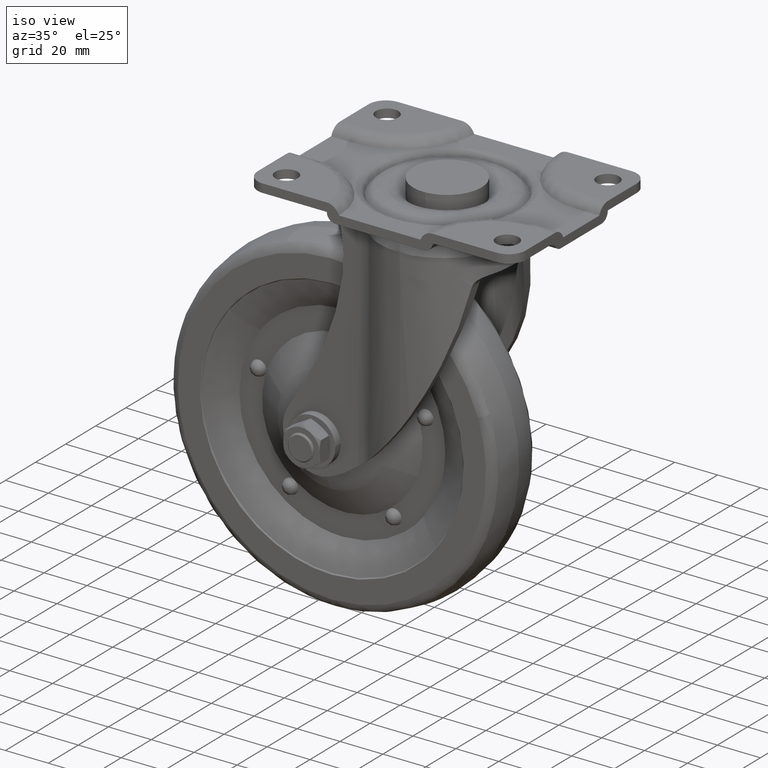
[diagram: clean part render]
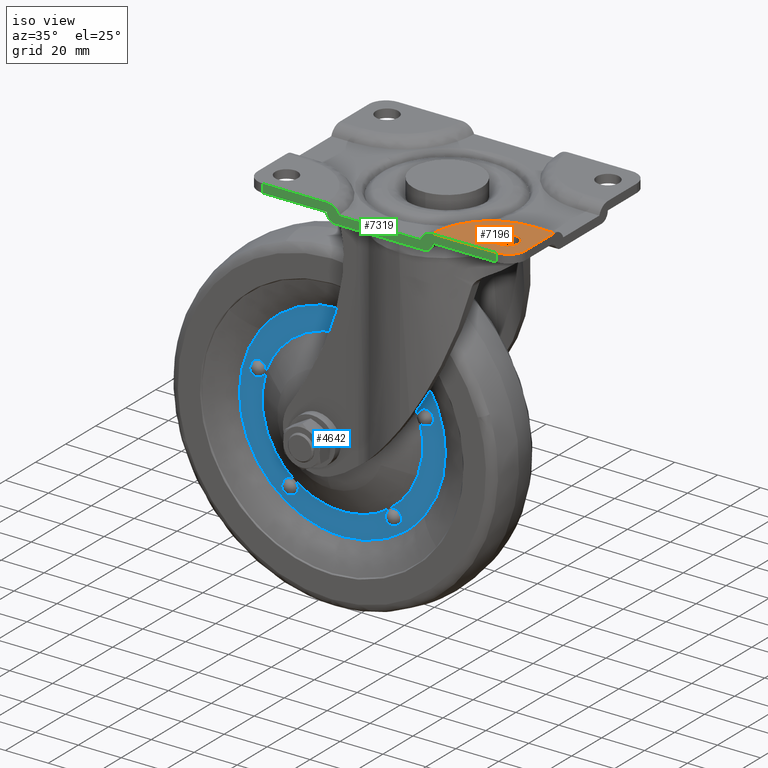
[diagram: same view with three faces highlighted in distinct colors, each labeled with its STEP entity id]
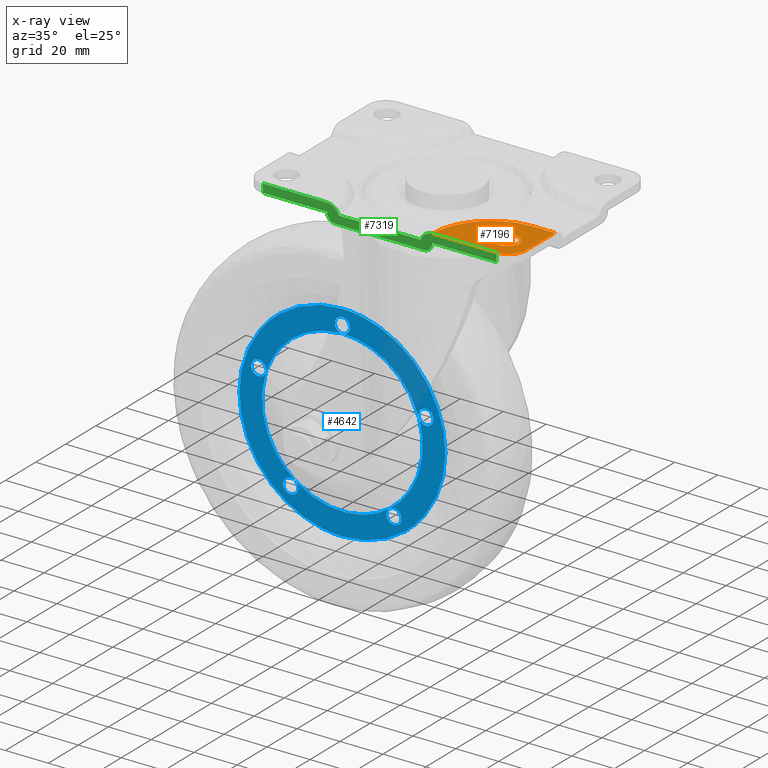
[diagram: x-ray of the same camera — body ghosted, the three highlighted faces saturated]
A machine part, iso view with three faces highlighted in distinct colors.
The next image is the same camera in x-ray (body ghosted, the three faces saturated) — at least one of them is partly hidden behind the body in this view.
Their STEP definitions:

[orange] entity #7196 — the highlighted face is a freeform B-spline surface patch.
#4845=CARTESIAN_POINT('',(51.179173166952843,-38.740207691684887,2.081668E-016));
#4846=VERTEX_POINT('',#4845);
#4847=CARTESIAN_POINT('',(56.749677999999903,-33.500000000000000,0.0));
#4848=VERTEX_POINT('',#4847);
#4849=CARTESIAN_POINT('',(51.179173166952843,-38.740207691684880,0.0));
#4850=CARTESIAN_POINT('',(51.339275992437088,-38.750000000000000,0.0));
#4851=CARTESIAN_POINT('',(51.499677999999903,-38.750000000000000,0.0));
#4852=CARTESIAN_POINT('',(56.749677999999896,-38.749999999999993,0.0));
#4853=CARTESIAN_POINT('',(56.749677999999903,-33.500000000000000,0.0));
#4861=(BOUNDED_CURVE()B_SPLINE_CURVE(2,(#4849,#4850,#4851,#4852,#4853),.UNSPECIFIED.,.F.,.U.)B_SPLINE_CURVE_WITH_KNOTS((3,2,3),(0.239332962225865,0.250000000000000,0.500000000000000),.UNSPECIFIED.)CURVE()GEOMETRIC_REPRESENTATION_ITEM()RATIONAL_B_SPLINE_CURVE((0.976072041638689,0.987502787884515,1.0,0.707106781186547,1.0))REPRESENTATION_ITEM(''));
#4862=EDGE_CURVE('',#4846,#4848,#4861,.T.);
#4864=CARTESIAN_POINT('',(51.820182833046957,-28.259792308315109,2.081668E-016));
#4865=VERTEX_POINT('',#4864);
#4866=CARTESIAN_POINT('',(56.749677999999903,-33.500000000000000,0.0));
#4867=CARTESIAN_POINT('',(56.749677999999911,-28.561293149206879,0.0));
#4868=CARTESIAN_POINT('',(51.820182833046957,-28.259792308315106,0.0));
#4876=(BOUNDED_CURVE()B_SPLINE_CURVE(2,(#4866,#4867,#4868),.UNSPECIFIED.,.F.,.U.)B_SPLINE_CURVE_WITH_KNOTS((3,3),(0.500000000000000,0.739332962225865),.UNSPECIFIED.)CURVE()GEOMETRIC_REPRESENTATION_ITEM()RATIONAL_B_SPLINE_CURVE((1.0,0.719603993302032,0.976072041638689))REPRESENTATION_ITEM(''));
#4877=EDGE_CURVE('',#4848,#4865,#4876,.T.);
#4944=CARTESIAN_POINT('',(46.249677999999903,-33.500000000000000,0.0));
#4945=VERTEX_POINT('',#4944);
#4946=CARTESIAN_POINT('',(46.249677999999903,-33.500000000000000,0.0));
#4947=CARTESIAN_POINT('',(46.249677999999903,-38.438706850793110,0.0));
#4948=CARTESIAN_POINT('',(51.179173166952836,-38.740207691684887,0.0));
#4956=(BOUNDED_CURVE()B_SPLINE_CURVE(2,(#4946,#4947,#4948),.UNSPECIFIED.,.F.,.U.)B_SPLINE_CURVE_WITH_KNOTS((3,3),(0.0,0.239332962225865),.UNSPECIFIED.)CURVE()GEOMETRIC_REPRESENTATION_ITEM()RATIONAL_B_SPLINE_CURVE((1.0,0.719603993302032,0.976072041638688))REPRESENTATION_ITEM(''));
#4957=EDGE_CURVE('',#4945,#4846,#4956,.T.);
#4991=CARTESIAN_POINT('',(51.820182833046964,-28.259792308315117,0.0));
#4992=CARTESIAN_POINT('',(51.660080007562712,-28.250000000000000,0.0));
#4993=CARTESIAN_POINT('',(51.499677999999903,-28.250000000000000,0.0));
#4994=CARTESIAN_POINT('',(46.249677999999896,-28.250000000000004,0.0));
#4995=CARTESIAN_POINT('',(46.249677999999903,-33.500000000000000,0.0));
#5003=(BOUNDED_CURVE()B_SPLINE_CURVE(2,(#4991,#4992,#4993,#4994,#4995),.UNSPECIFIED.,.F.,.U.)B_SPLINE_CURVE_WITH_KNOTS((3,2,3),(0.739332962225864,0.750000000000000,1.0),.UNSPECIFIED.)CURVE()GEOMETRIC_REPRESENTATION_ITEM()RATIONAL_B_SPLINE_CURVE((0.976072041638688,0.987502787884515,1.0,0.707106781186547,1.0))REPRESENTATION_ITEM(''));
#5004=EDGE_CURVE('',#4865,#4945,#5003,.T.);
#5777=CARTESIAN_POINT('',(62.499677999999903,-37.0,0.0));
#5778=VERTEX_POINT('',#5777);
#5784=CARTESIAN_POINT('',(54.499677999999903,-45.0,0.0));
#5785=VERTEX_POINT('',#5784);
#5786=CARTESIAN_POINT('',(54.499677999999903,-45.0,0.0));
#5787=CARTESIAN_POINT('',(62.499677999999882,-45.0,0.0));
#5788=CARTESIAN_POINT('',(62.499677999999903,-37.0,0.0));
#5796=(BOUNDED_CURVE()B_SPLINE_CURVE(2,(#5786,#5787,#5788),.UNSPECIFIED.,.F.,.U.)CURVE()GEOMETRIC_REPRESENTATION_ITEM()QUASI_UNIFORM_CURVE()RATIONAL_B_SPLINE_CURVE((1.0,0.707106781186548,1.0))REPRESENTATION_ITEM(''));
#5797=EDGE_CURVE('',#5785,#5778,#5796,.T.);
#6553=CARTESIAN_POINT('',(62.499677999999903,-17.656854249492351,0.0));
#6554=VERTEX_POINT('',#6553);
#6575=CARTESIAN_POINT('',(51.999677999999903,-17.656854249492401,0.0));
#6576=VERTEX_POINT('',#6575);
#6590=CARTESIAN_POINT('',(62.499677999999903,-17.656854249492351,0.0));
#6591=CARTESIAN_POINT('',(51.999677999999903,-17.656854249492401,0.0));
#6592=QUASI_UNIFORM_CURVE('',1,(#6590,#6591),.UNSPECIFIED.,.F.,.U.);
#6593=EDGE_CURVE('',#6554,#6576,#6592,.T.);
#6615=CARTESIAN_POINT('',(24.656532249492301,-45.0,0.0));
#6616=VERTEX_POINT('',#6615);
#6632=CARTESIAN_POINT('',(51.999677999999903,-17.656854249492390,0.0));
#6633=CARTESIAN_POINT('',(24.656532249492297,-17.656854249492397,0.0));
#6634=CARTESIAN_POINT('',(24.656532249492290,-45.0,0.0));
#6642=(BOUNDED_CURVE()B_SPLINE_CURVE(2,(#6632,#6633,#6634),.UNSPECIFIED.,.F.,.U.)CURVE()GEOMETRIC_REPRESENTATION_ITEM()QUASI_UNIFORM_CURVE()RATIONAL_B_SPLINE_CURVE((1.0,0.707106781186547,1.0))REPRESENTATION_ITEM(''));
#6643=EDGE_CURVE('',#6576,#6616,#6642,.T.);
#7170=CARTESIAN_POINT('',(22.766267192601809,-16.291064172250820,0.0));
#7171=CARTESIAN_POINT('',(64.389944071922656,-16.291064172250820,0.0));
#7172=CARTESIAN_POINT('',(22.766267192601809,-46.365790810641862,0.0));
#7173=CARTESIAN_POINT('',(64.389944071922656,-46.365790810641862,0.0));
#7174=B_SPLINE_SURFACE_WITH_KNOTS('',1,1,((#7170,#7172),(#7171,#7173)),.UNSPECIFIED.,.F.,.F.,.U.,(2,2),(2,2),(0.0,41.623676879320847),(0.0,30.074726638391031),.UNSPECIFIED.);
#7175=CARTESIAN_POINT('',(62.499677999999903,-37.0,0.0));
#7176=CARTESIAN_POINT('',(62.499677999999903,-17.656854249492351,0.0));
#7177=QUASI_UNIFORM_CURVE('',1,(#7175,#7176),.UNSPECIFIED.,.F.,.U.);
#7178=EDGE_CURVE('',#5778,#6554,#7177,.T.);
#7179=ORIENTED_EDGE('',*,*,#7178,.T.);
#7180=ORIENTED_EDGE('',*,*,#6593,.T.);
#7181=ORIENTED_EDGE('',*,*,#6643,.T.);
#7182=CARTESIAN_POINT('',(24.656532249492301,-45.0,0.0));
#7183=CARTESIAN_POINT('',(54.499677999999903,-45.0,0.0));
#7184=QUASI_UNIFORM_CURVE('',1,(#7182,#7183),.UNSPECIFIED.,.F.,.U.);
#7185=EDGE_CURVE('',#6616,#5785,#7184,.T.);
#7186=ORIENTED_EDGE('',*,*,#7185,.T.);
#7187=ORIENTED_EDGE('',*,*,#5797,.T.);
#7188=EDGE_LOOP('',(#7179,#7180,#7181,#7186,#7187));
#7189=FACE_OUTER_BOUND('',#7188,.T.);
#7190=ORIENTED_EDGE('',*,*,#4877,.F.);
#7191=ORIENTED_EDGE('',*,*,#4862,.F.);
#7192=ORIENTED_EDGE('',*,*,#4957,.F.);
#7193=ORIENTED_EDGE('',*,*,#5004,.F.);
#7194=EDGE_LOOP('',(#7190,#7191,#7192,#7193));
#7195=FACE_BOUND('',#7194,.T.);
#7196=ADVANCED_FACE('',(#7189,#7195),#7174,.F.);

[blue] entity #4642 — the highlighted face is a freeform B-spline surface patch.
#1807=CARTESIAN_POINT('',(-8.874792903171425,-6.999999999999702,-125.632776797194690));
#1808=VERTEX_POINT('',#1807);
#1814=CARTESIAN_POINT('',(-8.335380638931802,-7.0,-100.911862710939400));
#1815=VERTEX_POINT('',#1814);
#1816=CARTESIAN_POINT('',(-8.874792903171425,-6.999999999999702,-125.632776797194670));
#1817=CARTESIAN_POINT('',(-4.288621935363259,-6.999999999999999,-113.366505351832770));
#1818=CARTESIAN_POINT('',(-8.335380638931774,-7.0,-100.911862710939400));
#1826=(BOUNDED_CURVE()B_SPLINE_CURVE(2,(#1816,#1817,#1818),.UNSPECIFIED.,.F.,.U.)B_SPLINE_CURVE_WITH_KNOTS((3,3),(0.466422353161989,1.0),.UNSPECIFIED.)CURVE()GEOMETRIC_REPRESENTATION_ITEM()RATIONAL_B_SPLINE_CURVE((0.904939147962835,0.898095737272534,1.0))REPRESENTATION_ITEM(''));
#1827=EDGE_CURVE('',#1808,#1815,#1826,.T.);
#1829=CARTESIAN_POINT('',(-44.0,-7.0,-75.0));
#1830=VERTEX_POINT('',#1829);
#1831=CARTESIAN_POINT('',(-8.335380638931774,-7.0,-100.911862710939400));
#1832=CARTESIAN_POINT('',(-16.754655199799043,-7.000000000000001,-75.000000000000014));
#1833=CARTESIAN_POINT('',(-44.0,-7.0,-75.000000000000014));
#1841=(BOUNDED_CURVE()B_SPLINE_CURVE(2,(#1831,#1832,#1833),.UNSPECIFIED.,.F.,.U.)CURVE()GEOMETRIC_REPRESENTATION_ITEM()QUASI_UNIFORM_CURVE()RATIONAL_B_SPLINE_CURVE((1.0,0.809016994374948,1.0))REPRESENTATION_ITEM(''));
#1842=EDGE_CURVE('',#1815,#1830,#1841,.T.);
#1844=CARTESIAN_POINT('',(-79.125207096807543,-6.999999999997442,-99.367223202738558));
#1845=VERTEX_POINT('',#1844);
#1846=CARTESIAN_POINT('',(-44.0,-7.0,-75.0));
#1847=CARTESIAN_POINT('',(-70.014675659690766,-6.999999999998721,-74.999999999999289));
#1848=CARTESIAN_POINT('',(-79.125207096807543,-6.999999999997443,-99.367223202738558));
#1856=(BOUNDED_CURVE()B_SPLINE_CURVE(2,(#1846,#1847,#1848),.UNSPECIFIED.,.F.,.U.)B_SPLINE_CURVE_WITH_KNOTS((3,3),(0.0,0.963138804174748),.UNSPECIFIED.)CURVE()GEOMETRIC_REPRESENTATION_ITEM()RATIONAL_B_SPLINE_CURVE((1.0,0.816056856344587,0.986439271522011))REPRESENTATION_ITEM(''));
#1857=EDGE_CURVE('',#1830,#1845,#1856,.T.);
#1887=CARTESIAN_POINT('',(-79.664619361068304,-7.0,-100.911862710939600));
#1888=VERTEX_POINT('',#1887);
#1889=CARTESIAN_POINT('',(-79.125207096807543,-6.999999999997442,-99.367223202738558));
#1890=CARTESIAN_POINT('',(-79.411765305921847,-6.999999999998723,-100.133657948100660));
#1891=CARTESIAN_POINT('',(-79.664619361068304,-7.0,-100.911862710939600));
#1899=(BOUNDED_CURVE()B_SPLINE_CURVE(2,(#1889,#1890,#1891),.UNSPECIFIED.,.F.,.U.)B_SPLINE_CURVE_WITH_KNOTS((3,3),(0.963138804174747,1.0),.UNSPECIFIED.)CURVE()GEOMETRIC_REPRESENTATION_ITEM()RATIONAL_B_SPLINE_CURVE((0.986439271522011,0.992960138030360,1.0))REPRESENTATION_ITEM(''));
#1900=EDGE_CURVE('',#1845,#1888,#1899,.T.);
#1902=CARTESIAN_POINT('',(-66.041946960967806,-7.0,-142.838137289060400));
#1903=VERTEX_POINT('',#1902);
#1904=CARTESIAN_POINT('',(-79.664619361068304,-7.0,-100.911862710939600));
#1905=CARTESIAN_POINT('',(-88.083893921935385,-7.000000000000002,-126.823725421878860));
#1906=CARTESIAN_POINT('',(-66.041946960967849,-7.0,-142.838137289060510));
#1914=(BOUNDED_CURVE()B_SPLINE_CURVE(2,(#1904,#1905,#1906),.UNSPECIFIED.,.F.,.U.)CURVE()GEOMETRIC_REPRESENTATION_ITEM()QUASI_UNIFORM_CURVE()RATIONAL_B_SPLINE_CURVE((1.0,0.809016994374949,1.0))REPRESENTATION_ITEM(''));
#1915=EDGE_CURVE('',#1888,#1903,#1914,.T.);
#1917=CARTESIAN_POINT('',(-21.958053039032301,-7.0,-142.838137289060400));
#1918=VERTEX_POINT('',#1917);
#1919=CARTESIAN_POINT('',(-66.041946960967849,-7.0,-142.838137289060510));
#1920=CARTESIAN_POINT('',(-44.000000000000057,-7.000000000000002,-158.852549156242190));
#1921=CARTESIAN_POINT('',(-21.958053039032212,-7.0,-142.838137289060510));
#1929=(BOUNDED_CURVE()B_SPLINE_CURVE(2,(#1919,#1920,#1921),.UNSPECIFIED.,.F.,.U.)CURVE()GEOMETRIC_REPRESENTATION_ITEM()QUASI_UNIFORM_CURVE()RATIONAL_B_SPLINE_CURVE((1.0,0.809016994374946,1.0))REPRESENTATION_ITEM(''));
#1930=EDGE_CURVE('',#1903,#1918,#1929,.T.);
#1932=CARTESIAN_POINT('',(-21.958053039032219,-7.0,-142.838137289060510));
#1933=CARTESIAN_POINT('',(-12.827310092089510,-7.0,-136.204264225821590));
#1934=CARTESIAN_POINT('',(-8.874792903171802,-7.0,-125.632776797194550));
#1942=(BOUNDED_CURVE()B_SPLINE_CURVE(2,(#1932,#1933,#1934),.UNSPECIFIED.,.F.,.U.)B_SPLINE_CURVE_WITH_KNOTS((3,3),(0.0,0.466422353161989),.UNSPECIFIED.)CURVE()GEOMETRIC_REPRESENTATION_ITEM()RATIONAL_B_SPLINE_CURVE((1.0,0.910921257102413,0.904939147962835))REPRESENTATION_ITEM(''));
#1943=EDGE_CURVE('',#1918,#1808,#1942,.T.);
#4071=CARTESIAN_POINT('',(-82.111539135154743,-7.000000000074957,-83.319345710595996));
#4072=VERTEX_POINT('',#4071);
#4086=CARTESIAN_POINT('',(-44.0,-7.0,-64.500000000000000));
#4087=VERTEX_POINT('',#4086);
#4088=CARTESIAN_POINT('',(-44.0,-7.0,-64.500000000000000));
#4089=CARTESIAN_POINT('',(-67.702233355375498,-7.000000000037479,-64.499999999974207));
#4090=CARTESIAN_POINT('',(-82.111539135154743,-7.000000000074957,-83.319345710595996));
#4098=(BOUNDED_CURVE()B_SPLINE_CURVE(2,(#4088,#4089,#4090),.UNSPECIFIED.,.F.,.U.)B_SPLINE_CURVE_WITH_KNOTS((3,3),(0.500000000000000,0.644938183777398),.UNSPECIFIED.)CURVE()GEOMETRIC_REPRESENTATION_ITEM()RATIONAL_B_SPLINE_CURVE((1.0,0.830194355297849,0.857279284501937))REPRESENTATION_ITEM(''));
#4099=EDGE_CURVE('',#4087,#4072,#4098,.T.);
#4101=CARTESIAN_POINT('',(-5.888460864845264,-7.000000000074959,-141.680654289404000));
#4102=VERTEX_POINT('',#4101);
#4103=CARTESIAN_POINT('',(-5.888460864845264,-7.000000000074959,-141.680654289404060));
#4104=CARTESIAN_POINT('',(4.000000000061712,-7.000000000068688,-128.765780637083790));
#4105=CARTESIAN_POINT('',(4.000000000050292,-7.000000000055986,-112.500000000038500));
#4106=CARTESIAN_POINT('',(4.000000000016634,-7.000000000018506,-64.500000000012719));
#4107=CARTESIAN_POINT('',(-44.0,-7.0,-64.500000000000000));
#4115=(BOUNDED_CURVE()B_SPLINE_CURVE(2,(#4103,#4104,#4105,#4106,#4107),.UNSPECIFIED.,.F.,.U.)B_SPLINE_CURVE_WITH_KNOTS((3,2,3),(0.144938183777398,0.250000000000000,0.500000000000000),.UNSPECIFIED.)CURVE()GEOMETRIC_REPRESENTATION_ITEM()RATIONAL_B_SPLINE_CURVE((0.857279284501937,0.876912425888699,1.0,0.707106781186548,1.0))REPRESENTATION_ITEM(''));
#4116=EDGE_CURVE('',#4102,#4087,#4115,.T.);
#4159=CARTESIAN_POINT('',(-44.0,-6.999999999999996,-160.500000000000000));
#4160=VERTEX_POINT('',#4159);
#4161=CARTESIAN_POINT('',(-44.0,-6.999999999999996,-160.500000000000000));
#4162=CARTESIAN_POINT('',(-20.297766644624510,-7.000000000037477,-160.500000000025780));
#4163=CARTESIAN_POINT('',(-5.888460864845264,-7.000000000074959,-141.680654289404060));
#4171=(BOUNDED_CURVE()B_SPLINE_CURVE(2,(#4161,#4162,#4163),.UNSPECIFIED.,.F.,.U.)B_SPLINE_CURVE_WITH_KNOTS((3,3),(0.0,0.144938183777398),.UNSPECIFIED.)CURVE()GEOMETRIC_REPRESENTATION_ITEM()RATIONAL_B_SPLINE_CURVE((1.0,0.830194355297849,0.857279284501937))REPRESENTATION_ITEM(''));
#4172=EDGE_CURVE('',#4160,#4102,#4171,.T.);
#4174=CARTESIAN_POINT('',(-82.111539135154743,-7.000000000074957,-83.319345710595996));
#4175=CARTESIAN_POINT('',(-92.000000000061718,-7.000000000068686,-96.234219362916221));
#4176=CARTESIAN_POINT('',(-92.000000000050306,-7.000000000055984,-112.499999999961500));
#4177=CARTESIAN_POINT('',(-92.000000000016627,-7.000000000018503,-160.499999999987300));
#4178=CARTESIAN_POINT('',(-44.0,-6.999999999999996,-160.500000000000000));
#4186=(BOUNDED_CURVE()B_SPLINE_CURVE(2,(#4174,#4175,#4176,#4177,#4178),.UNSPECIFIED.,.F.,.U.)B_SPLINE_CURVE_WITH_KNOTS((3,2,3),(0.644938183777398,0.750000000000000,1.0),.UNSPECIFIED.)CURVE()GEOMETRIC_REPRESENTATION_ITEM()RATIONAL_B_SPLINE_CURVE((0.857279284501937,0.876912425888699,1.0,0.707106781186548,1.0))REPRESENTATION_ITEM(''));
#4187=EDGE_CURVE('',#4072,#4160,#4186,.T.);
#4239=CARTESIAN_POINT('',(-86.322014975134437,-6.999999999999920,-98.748743750314617));
#4240=VERTEX_POINT('',#4239);
#4241=CARTESIAN_POINT('',(-79.664619361068304,-7.0,-100.911862710939600));
#4242=CARTESIAN_POINT('',(-79.531579375136204,-6.999999999999869,-100.503440611304500));
#4243=CARTESIAN_POINT('',(-79.418694091694704,-6.999999999999950,-99.637097213659004));
#4244=CARTESIAN_POINT('',(-79.700128191664646,-6.999999999999933,-98.476727074172913));
#4245=CARTESIAN_POINT('',(-80.204742241991596,-6.999999999999913,-97.667506687838440));
#4246=CARTESIAN_POINT('',(-80.769597966874159,-6.999999999999941,-97.094304379606385));
#4247=CARTESIAN_POINT('',(-81.515538380837469,-6.999999999999923,-96.600828822944720));
#4248=CARTESIAN_POINT('',(-82.490215272451280,-6.999999999999884,-96.310419058195336));
#4249=CARTESIAN_POINT('',(-83.472529999793295,-6.999999999999970,-96.327526774450732));
#4250=CARTESIAN_POINT('',(-84.390743729066429,-6.999999999999893,-96.574221461918000));
#4251=CARTESIAN_POINT('',(-85.165184003868717,-6.999999999999887,-97.030709194240231));
#4252=CARTESIAN_POINT('',(-85.885825025428275,-7.000000000000012,-97.776680927458642));
#4253=CARTESIAN_POINT('',(-86.198397927501617,-6.999999999999806,-98.367368001892956));
#4254=CARTESIAN_POINT('',(-86.322014975134437,-6.999999999999920,-98.748743750314617));
#4255=B_SPLINE_CURVE_WITH_KNOTS('',3,(#4241,#4242,#4243,#4244,#4245,#4246,#4247,#4248,#4249,#4250,#4251,#4252,#4253,#4254),.UNSPECIFIED.,.F.,.U.,(4,1,1,1,1,1,1,1,1,1,1,4),(0.000000716948088,1.288553481662710,2.577148631617620,3.522158739251202,4.123471527610780,4.982608421297837,6.185144539164943,7.130093131137930,7.903258906376352,9.020043230724795,9.793215092397322,10.995850211742709),.UNSPECIFIED.);
#4256=EDGE_CURVE('',#1888,#4240,#4255,.T.);
#4258=CARTESIAN_POINT('',(-86.322014975134437,-6.999999999999920,-98.748743750314617));
#4259=CARTESIAN_POINT('',(-86.428287148631057,-6.999999999999917,-99.075469955161935));
#4260=CARTESIAN_POINT('',(-86.553324199334469,-6.999999999999932,-99.817645828407365));
#4261=CARTESIAN_POINT('',(-86.381593256652707,-6.999999999999913,-100.937861917503400));
#4262=CARTESIAN_POINT('',(-85.828801854770774,-6.999999999999932,-101.990731949363710));
#4263=CARTESIAN_POINT('',(-85.067523749820907,-6.999999999999914,-102.708276132834600));
#4264=CARTESIAN_POINT('',(-84.221373476459178,-6.999999999999929,-103.141800184209000));
#4265=CARTESIAN_POINT('',(-83.520930097261044,-6.999999999999916,-103.313600773714800));
#4266=CARTESIAN_POINT('',(-82.803844500651024,-6.999999999999925,-103.345274586219400));
#4267=CARTESIAN_POINT('',(-82.090650567349542,-6.999999999999913,-103.244887327965500));
#4268=CARTESIAN_POINT('',(-81.203880570498455,-6.999999999999949,-102.898056965635600));
#4269=CARTESIAN_POINT('',(-80.268250662043869,-6.999999999999858,-102.160511379719590));
#4270=CARTESIAN_POINT('',(-79.814482380321664,-6.999999999999943,-101.375050871001210));
#4271=CARTESIAN_POINT('',(-79.664619361068304,-7.0,-100.911862710939600));
#4272=B_SPLINE_CURVE_WITH_KNOTS('',3,(#4258,#4259,#4260,#4261,#4262,#4263,#4264,#4265,#4266,#4267,#4268,#4269,#4270,#4271),.UNSPECIFIED.,.F.,.U.,(4,1,1,1,1,1,1,1,1,1,1,4),(0.000000716924022,1.030759653957421,2.233504515306608,3.350329781584115,4.553048990798414,5.326182265275469,6.185144539159365,6.700560554787295,7.473732416585773,8.332796197841136,9.535533695490347,10.995850211742770),.UNSPECIFIED.);
#4273=EDGE_CURVE('',#4240,#1888,#4272,.T.);
#4322=CARTESIAN_POINT('',(-70.156443727015002,-6.999999999999920,-148.501256249685500));
#4323=VERTEX_POINT('',#4322);
#4324=CARTESIAN_POINT('',(-66.041946960967806,-7.0,-142.838137289060400));
#4325=CARTESIAN_POINT('',(-66.389263053458251,-6.999999999999872,-142.585351083332600));
#4326=CARTESIAN_POINT('',(-66.994219461375025,-6.999999999999943,-142.298101865078590));
#4327=CARTESIAN_POINT('',(-68.073339904556619,-6.999999999999911,-142.121548612547090));
#4328=CARTESIAN_POINT('',(-69.114177472052162,-6.999999999999925,-142.247237496119310));
#4329=CARTESIAN_POINT('',(-70.073737511558136,-6.999999999999920,-142.727642114159410));
#4330=CARTESIAN_POINT('',(-70.843939307890196,-6.999999999999922,-143.422281255927490));
#4331=CARTESIAN_POINT('',(-71.425731866807425,-6.999999999999900,-144.360694694985110));
#4332=CARTESIAN_POINT('',(-71.673096609272037,-7.000000000000022,-145.588456816079710));
#4333=CARTESIAN_POINT('',(-71.504647056957523,-6.999999999999825,-146.650356600631910));
#4334=CARTESIAN_POINT('',(-71.039686580614287,-6.999999999999982,-147.671809876568490));
#4335=CARTESIAN_POINT('',(-70.550731443793268,-6.999999999999877,-148.215564093134990));
#4336=CARTESIAN_POINT('',(-70.156443727015002,-6.999999999999920,-148.501256249685500));
#4337=B_SPLINE_CURVE_WITH_KNOTS('',3,(#4324,#4325,#4326,#4327,#4328,#4329,#4330,#4331,#4332,#4333,#4334,#4335,#4336),.UNSPECIFIED.,.F.,.U.,(4,1,1,1,1,1,1,1,1,1,4),(0.000000716969868,1.288553481683866,1.975791420165969,3.264403479394179,4.381253071873418,5.154415332139138,6.356872910240456,7.645513248159203,8.848262399129100,9.535533695498179,10.995850211742260),.UNSPECIFIED.);
#4338=EDGE_CURVE('',#1903,#4323,#4337,.T.);
#4340=CARTESIAN_POINT('',(-70.156443727015002,-6.999999999999920,-148.501256249685500));
#4341=CARTESIAN_POINT('',(-69.832276266427726,-6.999999999999949,-148.737154427692190));
#4342=CARTESIAN_POINT('',(-69.284386539579799,-6.999999999999872,-149.005677042529100));
#4343=CARTESIAN_POINT('',(-68.439148062523870,-6.999999999999952,-149.175883008743200));
#4344=CARTESIAN_POINT('',(-67.574781939577491,-6.999999999999919,-149.178341688231910));
#4345=CARTESIAN_POINT('',(-66.597253047417041,-6.999999999999891,-148.897416514700690));
#4346=CARTESIAN_POINT('',(-65.784432230616218,-6.999999999999927,-148.342483069397590));
#4347=CARTESIAN_POINT('',(-65.249383908572554,-6.999999999999917,-147.740178156529110));
#4348=CARTESIAN_POINT('',(-64.900279767581367,-6.999999999999925,-147.144484042019400));
#4349=CARTESIAN_POINT('',(-64.607619133907150,-6.999999999999918,-146.301790432568990));
#4350=CARTESIAN_POINT('',(-64.558195824942743,-6.999999999999923,-145.342134498013110));
#4351=CARTESIAN_POINT('',(-64.806185750597479,-6.999999999999914,-144.392941166586890));
#4352=CARTESIAN_POINT('',(-65.252222464895226,-6.999999999999966,-143.553339331277810));
#4353=CARTESIAN_POINT('',(-65.717459987459478,-6.999999999999829,-143.073579905576590));
#4354=CARTESIAN_POINT('',(-66.041946960967806,-7.0,-142.838137289060400));
#4355=B_SPLINE_CURVE_WITH_KNOTS('',3,(#4340,#4341,#4342,#4343,#4344,#4345,#4346,#4347,#4348,#4349,#4350,#4351,#4352,#4353,#4354),.UNSPECIFIED.,.F.,.U.,(4,1,1,1,1,1,1,1,1,1,1,1,4),(0.000000716854757,1.202626324375824,1.803955654466190,2.577148631550898,3.779868743738313,4.810749963047117,5.497925435644093,6.185144539129775,6.872320823149190,8.160979449408506,9.020043230711515,9.793215092390277,10.995850211743210),.UNSPECIFIED.);
#4356=EDGE_CURVE('',#4323,#1903,#4355,.T.);
#4405=CARTESIAN_POINT('',(-17.843556272984941,-6.999999999999920,-148.501256249685410));
#4406=VERTEX_POINT('',#4405);
#4407=CARTESIAN_POINT('',(-21.958053039032301,-7.0,-142.838137289060400));
#4408=CARTESIAN_POINT('',(-22.236123051671790,-6.999999999999883,-143.039969165347910));
#4409=CARTESIAN_POINT('',(-22.669914139474059,-6.999999999999939,-143.465722502156410));
#4410=CARTESIAN_POINT('',(-23.171600312152979,-6.999999999999935,-144.307068375687090));
#4411=CARTESIAN_POINT('',(-23.416947986669939,-6.999999999999876,-145.202073530257790));
#4412=CARTESIAN_POINT('',(-23.402319046397938,-6.999999999999999,-146.182936394897010));
#4413=CARTESIAN_POINT('',(-23.122744767045749,-6.999999999999878,-147.184962546522910));
#4414=CARTESIAN_POINT('',(-22.489446539572558,-6.999999999999936,-148.127738308130290));
#4415=CARTESIAN_POINT('',(-21.625899548131098,-6.999999999999914,-148.764687742412210));
#4416=CARTESIAN_POINT('',(-20.818635619884329,-7.000000000000117,-149.073608422924710));
#4417=CARTESIAN_POINT('',(-20.022904787280989,-6.999999999999836,-149.199708322949900));
#4418=CARTESIAN_POINT('',(-18.985618612357911,-6.999999999999955,-149.120757695279790));
#4419=CARTESIAN_POINT('',(-18.237061163595271,-6.999999999999930,-148.787965184644610));
#4420=CARTESIAN_POINT('',(-17.843556272984941,-6.999999999999920,-148.501256249685410));
#4421=B_SPLINE_CURVE_WITH_KNOTS('',3,(#4407,#4408,#4409,#4410,#4411,#4412,#4413,#4414,#4415,#4416,#4417,#4418,#4419,#4420),.UNSPECIFIED.,.F.,.U.,(4,1,1,1,1,1,1,1,1,1,1,4),(0.000000716994800,1.030759654017711,1.803955654578795,2.920785672740805,3.779868743824725,4.724799527148357,6.013260988207547,7.130093131154860,7.903258906390217,8.590516740883519,9.535533695497962,10.995850211742219),.UNSPECIFIED.);
#4422=EDGE_CURVE('',#1918,#4406,#4421,.T.);
#4424=CARTESIAN_POINT('',(-17.843556272984941,-6.999999999999920,-148.501256249685410));
#4425=CARTESIAN_POINT('',(-17.519082474659509,-6.999999999999912,-148.265809848510910));
#4426=CARTESIAN_POINT('',(-17.053806064783839,-6.999999999999935,-147.786075781765500));
#4427=CARTESIAN_POINT('',(-16.648387720187522,-6.999999999999906,-147.022761115384700));
#4428=CARTESIAN_POINT('',(-16.408216048380240,-6.999999999999953,-146.224609734983890));
#4429=CARTESIAN_POINT('',(-16.364880074874751,-6.999999999999872,-145.297589151281610));
#4430=CARTESIAN_POINT('',(-16.618241395869319,-6.999999999999984,-144.346600840900490));
#4431=CARTESIAN_POINT('',(-17.117278232531600,-6.999999999999873,-143.470313500601690));
#4432=CARTESIAN_POINT('',(-17.784379289388681,-6.999999999999931,-142.822691482174800));
#4433=CARTESIAN_POINT('',(-18.700345104419910,-6.999999999999936,-142.335968992484110));
#4434=CARTESIAN_POINT('',(-19.662942131713422,-6.999999999999906,-142.122254080495310));
#4435=CARTESIAN_POINT('',(-20.845130326562529,-6.999999999999945,-142.227035471158900));
#4436=CARTESIAN_POINT('',(-21.587659004299908,-6.999999999999882,-142.568426809688190));
#4437=CARTESIAN_POINT('',(-21.958053039032301,-7.0,-142.838137289060400));
#4438=B_SPLINE_CURVE_WITH_KNOTS('',3,(#4424,#4425,#4426,#4427,#4428,#4429,#4430,#4431,#4432,#4433,#4434,#4435,#4436,#4437),.UNSPECIFIED.,.F.,.U.,(4,1,1,1,1,1,1,1,1,1,1,4),(0.000000716987428,1.202626324491737,1.975791420177837,2.577148631648971,3.693928735907609,4.724799527146519,5.497925435708588,6.700560554810645,7.473732416604831,8.590516740883793,9.621454824094917,10.995850211742271),.UNSPECIFIED.);
#4439=EDGE_CURVE('',#4406,#1918,#4438,.T.);
#4488=CARTESIAN_POINT('',(-1.677985024865485,-6.999999999999920,-98.748743750314830));
#4489=VERTEX_POINT('',#4488);
#4490=CARTESIAN_POINT('',(-8.335380638931802,-7.0,-100.911862710939400));
#4491=CARTESIAN_POINT('',(-8.185425741121755,-6.999999999999892,-101.375046789364400));
#4492=CARTESIAN_POINT('',(-7.804971280262095,-6.999999999999920,-102.033703916180000));
#4493=CARTESIAN_POINT('',(-7.074058802887279,-6.999999999999930,-102.685954804657800));
#4494=CARTESIAN_POINT('',(-6.350127732147783,-6.999999999999910,-103.100943749332400));
#4495=CARTESIAN_POINT('',(-5.458592106386966,-6.999999999999923,-103.352434281343410));
#4496=CARTESIAN_POINT('',(-4.358811396206839,-6.999999999999943,-103.330894040818810));
#4497=CARTESIAN_POINT('',(-3.427009003677902,-6.999999999999858,-103.002676485449700));
#4498=CARTESIAN_POINT('',(-2.742620814111142,-7.000000000000025,-102.525308486764900));
#4499=CARTESIAN_POINT('',(-2.238295189047250,-6.999999999999741,-102.013573147095300));
#4500=CARTESIAN_POINT('',(-1.755796637371176,-7.000000000000017,-101.260382647682210));
#4501=CARTESIAN_POINT('',(-1.432408940052959,-6.999999999999835,-100.113714399268600));
#4502=CARTESIAN_POINT('',(-1.526967608504208,-6.999999999999969,-99.211562482849629));
#4503=CARTESIAN_POINT('',(-1.677985024865485,-6.999999999999920,-98.748743750314830));
#4504=B_SPLINE_CURVE_WITH_KNOTS('',3,(#4490,#4491,#4492,#4493,#4494,#4495,#4496,#4497,#4498,#4499,#4500,#4501,#4502,#4503),.UNSPECIFIED.,.F.,.U.,(4,1,1,1,1,1,1,1,1,1,1,4),(0.000000716937025,1.460311387911752,2.233504515314108,2.920785672699640,3.951708358559495,4.982608421293711,6.185144539162562,6.872320823177212,7.473732416588321,8.332796197843496,9.535533695491957,10.995850211742720),.UNSPECIFIED.);
#4505=EDGE_CURVE('',#1815,#4489,#4504,.T.);
#4507=CARTESIAN_POINT('',(-1.677985024865485,-6.999999999999920,-98.748743750314830));
#4508=CARTESIAN_POINT('',(-1.801624124841823,-6.999999999999923,-98.367382208500956));
#4509=CARTESIAN_POINT('',(-2.114145832484233,-6.999999999999923,-97.776676439411688));
#4510=CARTESIAN_POINT('',(-2.834831914004568,-6.999999999999926,-97.030756343779316));
#4511=CARTESIAN_POINT('',(-3.759119927243752,-6.999999999999918,-96.485600909770568));
#4512=CARTESIAN_POINT('',(-4.817522664831550,-6.999999999999913,-96.283233325815800));
#4513=CARTESIAN_POINT('',(-5.734267825142609,-6.999999999999927,-96.380738374991324));
#4514=CARTESIAN_POINT('',(-6.473068601301165,-6.999999999999907,-96.620732426702318));
#4515=CARTESIAN_POINT('',(-7.143142724309435,-6.999999999999931,-97.017850063226106));
#4516=CARTESIAN_POINT('',(-7.806278933110633,-6.999999999999915,-97.658432204218016));
#4517=CARTESIAN_POINT('',(-8.262776146558494,-6.999999999999923,-98.432876978430031));
#4518=CARTESIAN_POINT('',(-8.494500306996635,-6.999999999999937,-99.295479517504347));
#4519=CARTESIAN_POINT('',(-8.528103443823085,-6.999999999999862,-100.101436943830610));
#4520=CARTESIAN_POINT('',(-8.423931599220204,-7.000000000000020,-100.639583374813800));
#4521=CARTESIAN_POINT('',(-8.335380638931802,-7.0,-100.911862710939400));
#4522=B_SPLINE_CURVE_WITH_KNOTS('',3,(#4507,#4508,#4509,#4510,#4511,#4512,#4513,#4514,#4515,#4516,#4517,#4518,#4519,#4520,#4521),.UNSPECIFIED.,.F.,.U.,(4,1,1,1,1,1,1,1,1,1,1,1,4),(0.000000716954105,1.202626324461912,1.975791420149536,3.092609755543903,4.381253071855712,5.154415332121343,5.841419408216808,6.700560554793428,7.473732416589993,8.590516740872946,9.363682516072833,10.136902737018850,10.995850211742759),.UNSPECIFIED.);
#4523=EDGE_CURVE('',#4489,#1815,#4522,.T.);
#4572=CARTESIAN_POINT('',(-44.0,-6.999999999999920,-67.999999999999929));
#4573=VERTEX_POINT('',#4572);
#4574=CARTESIAN_POINT('',(-44.0,-7.0,-75.0));
#4575=CARTESIAN_POINT('',(-43.513122692394496,-6.999999999999854,-75.000578927893883));
#4576=CARTESIAN_POINT('',(-42.826417468174498,-6.999999999999944,-74.854339967198968));
#4577=CARTESIAN_POINT('',(-41.995567687918452,-6.999999999999928,-74.396771473515074));
#4578=CARTESIAN_POINT('',(-41.510572526316658,-6.999999999999891,-73.988732997075132));
#4579=CARTESIAN_POINT('',(-41.073466520740922,-6.999999999999941,-73.456018948123315));
#4580=CARTESIAN_POINT('',(-40.670280293663232,-6.999999999999901,-72.724174082963160));
#4581=CARTESIAN_POINT('',(-40.434687772806953,-6.999999999999910,-71.675159087095409));
#4582=CARTESIAN_POINT('',(-40.573529533070200,-6.999999999999973,-70.550377304221215));
#4583=CARTESIAN_POINT('',(-41.030857018639502,-6.999999999999840,-69.552049257147303));
#4584=CARTESIAN_POINT('',(-41.703211162333140,-6.999999999999960,-68.791605962356570));
#4585=CARTESIAN_POINT('',(-42.711972931982807,-6.999999999999885,-68.170161969719572));
#4586=CARTESIAN_POINT('',(-43.513108617914938,-6.999999999999950,-67.999325377077085));
#4587=CARTESIAN_POINT('',(-44.0,-6.999999999999920,-67.999999999999929));
#4588=B_SPLINE_CURVE_WITH_KNOTS('',3,(#4574,#4575,#4576,#4577,#4578,#4579,#4580,#4581,#4582,#4583,#4584,#4585,#4586,#4587),.UNSPECIFIED.,.F.,.U.,(4,1,1,1,1,1,1,1,1,1,1,4),(0.000000716906023,1.460311387885840,2.061721312238850,2.834874521116836,3.350329781569388,4.123471527587269,5.326182265264368,6.528704039568967,7.473732416578208,8.590516740865295,9.535533695486800,10.995850211743020),.UNSPECIFIED.);
#4589=EDGE_CURVE('',#1830,#4573,#4588,.T.);
#4591=CARTESIAN_POINT('',(-44.0,-6.999999999999920,-67.999999999999929));
#4592=CARTESIAN_POINT('',(-44.486878793936917,-6.999999999999912,-67.999454334883907));
#4593=CARTESIAN_POINT('',(-45.230764613572767,-6.999999999999935,-68.157876508262746));
#4594=CARTESIAN_POINT('',(-46.201621361256848,-6.999999999999898,-68.723770616538033));
#4595=CARTESIAN_POINT('',(-46.788946339696601,-6.999999999999944,-69.325651504048594));
#4596=CARTESIAN_POINT('',(-47.252051020460883,-6.999999999999930,-70.120379734388834));
#4597=CARTESIAN_POINT('',(-47.478905975034948,-6.999999999999925,-70.868176998561268));
#4598=CARTESIAN_POINT('',(-47.518301611572831,-6.999999999999868,-71.672826033992806));
#4599=CARTESIAN_POINT('',(-47.412807305826369,-6.999999999999911,-72.384303546186786));
#4600=CARTESIAN_POINT('',(-47.151822157377360,-6.999999999999965,-73.086421180046869));
#4601=CARTESIAN_POINT('',(-46.633553928750018,-6.999999999999884,-73.883636373188921));
#4602=CARTESIAN_POINT('',(-45.898270231073262,-6.999999999999959,-74.502334527294735));
#4603=CARTESIAN_POINT('',(-44.944780098243690,-6.999999999999885,-74.910676783164831));
#4604=CARTESIAN_POINT('',(-44.343599613363928,-6.999999999999908,-75.000154605135961));
#4605=CARTESIAN_POINT('',(-44.0,-7.0,-75.0));
#4606=B_SPLINE_CURVE_WITH_KNOTS('',3,(#4591,#4592,#4593,#4594,#4595,#4596,#4597,#4598,#4599,#4600,#4601,#4602,#4603,#4604,#4605),.UNSPECIFIED.,.F.,.U.,(4,1,1,1,1,1,1,1,1,1,1,1,4),(0.000000716987547,1.460311387953842,2.233504515351282,3.350329781619856,3.951708358585436,4.982608421314490,5.669646804384689,6.356872910233683,7.130093131148652,7.903258906385224,9.191904862665409,9.965071607737803,10.995850211742489),.UNSPECIFIED.);
#4607=EDGE_CURVE('',#4573,#1830,#4606,.T.);
#4612=CARTESIAN_POINT('',(-96.790158289138816,-7.0,-59.704800186066642));
#4613=CARTESIAN_POINT('',(-96.790158289138816,-7.0,-165.295202388853990));
#4614=CARTESIAN_POINT('',(8.790161722038590,-7.0,-59.704800186066642));
#4615=CARTESIAN_POINT('',(8.790161722038590,-7.0,-165.295202388853990));
#4616=B_SPLINE_SURFACE_WITH_KNOTS('',1,1,((#4612,#4614),(#4613,#4615)),.UNSPECIFIED.,.F.,.F.,.U.,(2,2),(2,2),(0.0,105.590402202787400),(0.0,105.580320011177410),.UNSPECIFIED.);
#4617=ORIENTED_EDGE('',*,*,#4172,.T.);
#4618=ORIENTED_EDGE('',*,*,#4116,.T.);
#4619=ORIENTED_EDGE('',*,*,#4099,.T.);
#4620=ORIENTED_EDGE('',*,*,#4187,.T.);
#4621=EDGE_LOOP('',(#4617,#4618,#4619,#4620));
#4622=FACE_OUTER_BOUND('',#4621,.T.);
#4623=ORIENTED_EDGE('',*,*,#1915,.F.);
#4624=ORIENTED_EDGE('',*,*,#4273,.F.);
#4625=ORIENTED_EDGE('',*,*,#4256,.F.);
#4626=ORIENTED_EDGE('',*,*,#1900,.F.);
#4627=ORIENTED_EDGE('',*,*,#1857,.F.);
#4628=ORIENTED_EDGE('',*,*,#4607,.F.);
#4629=ORIENTED_EDGE('',*,*,#4589,.F.);
#4630=ORIENTED_EDGE('',*,*,#1842,.F.);
#4631=ORIENTED_EDGE('',*,*,#4523,.F.);
#4632=ORIENTED_EDGE('',*,*,#4505,.F.);
#4633=ORIENTED_EDGE('',*,*,#1827,.F.);
#4634=ORIENTED_EDGE('',*,*,#1943,.F.);
#4635=ORIENTED_EDGE('',*,*,#4439,.F.);
#4636=ORIENTED_EDGE('',*,*,#4422,.F.);
#4637=ORIENTED_EDGE('',*,*,#1930,.F.);
#4638=ORIENTED_EDGE('',*,*,#4356,.F.);
#4639=ORIENTED_EDGE('',*,*,#4338,.F.);
#4640=EDGE_LOOP('',(#4623,#4624,#4625,#4626,#4627,#4628,#4629,#4630,#4631,#4632,#4633,#4634,#4635,#4636,#4637,#4638,#4639));
#4641=FACE_BOUND('',#4640,.T.);
#4642=ADVANCED_FACE('',(#4622,#4641),#4616,.T.);

[green] entity #7319 — the highlighted face is a freeform B-spline surface patch.
#5760=CARTESIAN_POINT('',(54.499677999999903,-45.0,-4.0));
#5761=VERTEX_POINT('',#5760);
#5784=CARTESIAN_POINT('',(54.499677999999903,-45.0,0.0));
#5785=VERTEX_POINT('',#5784);
#5799=CARTESIAN_POINT('',(54.499677999999903,-45.0,-4.0));
#5800=CARTESIAN_POINT('',(54.499677999999903,-45.0,0.0));
#5801=QUASI_UNIFORM_CURVE('',1,(#5799,#5800),.UNSPECIFIED.,.F.,.U.);
#5802=EDGE_CURVE('',#5761,#5785,#5801,.T.);
#5823=CARTESIAN_POINT('',(-54.500321999999997,-45.0,-4.0));
#5824=VERTEX_POINT('',#5823);
#5838=CARTESIAN_POINT('',(-54.500321999999997,-45.0,0.0));
#5839=VERTEX_POINT('',#5838);
#5840=CARTESIAN_POINT('',(-54.500321999999997,-45.0,-4.0));
#5841=CARTESIAN_POINT('',(-54.500321999999997,-45.0,0.0));
#5842=QUASI_UNIFORM_CURVE('',1,(#5840,#5841),.UNSPECIFIED.,.F.,.U.);
#5843=EDGE_CURVE('',#5824,#5839,#5842,.T.);
#5930=CARTESIAN_POINT('',(24.659677999999850,-45.0,-4.0));
#5931=VERTEX_POINT('',#5930);
#5932=CARTESIAN_POINT('',(24.659677999999850,-45.0,-4.0));
#5933=CARTESIAN_POINT('',(54.499677999999903,-45.0,-4.0));
#5934=QUASI_UNIFORM_CURVE('',1,(#5932,#5933),.UNSPECIFIED.,.F.,.U.);
#5935=EDGE_CURVE('',#5931,#5761,#5934,.T.);
#5971=CARTESIAN_POINT('',(-24.660322000000001,-45.0,-4.0));
#5972=VERTEX_POINT('',#5971);
#5973=CARTESIAN_POINT('',(-54.500321999999997,-45.0,-4.0));
#5974=CARTESIAN_POINT('',(-24.660322000000001,-45.0,-4.0));
#5975=QUASI_UNIFORM_CURVE('',1,(#5973,#5974),.UNSPECIFIED.,.F.,.U.);
#5976=EDGE_CURVE('',#5824,#5972,#5975,.T.);
#6490=CARTESIAN_POINT('',(-19.000322000000001,-45.0,-4.0));
#6491=VERTEX_POINT('',#6490);
#6492=CARTESIAN_POINT('',(-24.657176249492402,-45.0,0.0));
#6493=VERTEX_POINT('',#6492);
#6494=CARTESIAN_POINT('',(-19.000322000000018,-45.0,-4.000000000000005));
#6495=CARTESIAN_POINT('',(-20.414535562373111,-45.0,0.0));
#6496=CARTESIAN_POINT('',(-24.657176249492402,-45.0,0.0));
#6504=(BOUNDED_CURVE()B_SPLINE_CURVE(2,(#6494,#6495,#6496),.UNSPECIFIED.,.F.,.U.)CURVE()GEOMETRIC_REPRESENTATION_ITEM()QUASI_UNIFORM_CURVE()RATIONAL_B_SPLINE_CURVE((1.0,0.816496580927726,1.0))REPRESENTATION_ITEM(''));
#6505=EDGE_CURVE('',#6491,#6493,#6504,.T.);
#6615=CARTESIAN_POINT('',(24.656532249492301,-45.0,0.0));
#6616=VERTEX_POINT('',#6615);
#6617=CARTESIAN_POINT('',(18.999677999999900,-45.0,-4.0));
#6618=VERTEX_POINT('',#6617);
#6619=CARTESIAN_POINT('',(24.656532249492301,-45.0,0.0));
#6620=CARTESIAN_POINT('',(20.413891562373006,-44.999999999999993,0.0));
#6621=CARTESIAN_POINT('',(18.999677999999921,-45.0,-4.000000000000005));
#6629=(BOUNDED_CURVE()B_SPLINE_CURVE(2,(#6619,#6620,#6621),.UNSPECIFIED.,.F.,.U.)CURVE()GEOMETRIC_REPRESENTATION_ITEM()QUASI_UNIFORM_CURVE()RATIONAL_B_SPLINE_CURVE((1.0,0.816496580927726,1.0))REPRESENTATION_ITEM(''));
#6630=EDGE_CURVE('',#6616,#6618,#6629,.T.);
#6938=CARTESIAN_POINT('',(-20.660322000000001,-45.0,-8.0));
#6939=VERTEX_POINT('',#6938);
#6940=CARTESIAN_POINT('',(-24.660322000000001,-45.0,-4.0));
#6941=CARTESIAN_POINT('',(-24.660321999999994,-45.0,-8.0));
#6942=CARTESIAN_POINT('',(-20.660322000000001,-45.0,-8.0));
#6950=(BOUNDED_CURVE()B_SPLINE_CURVE(2,(#6940,#6941,#6942),.UNSPECIFIED.,.F.,.U.)CURVE()GEOMETRIC_REPRESENTATION_ITEM()QUASI_UNIFORM_CURVE()RATIONAL_B_SPLINE_CURVE((1.0,0.707106781186548,1.0))REPRESENTATION_ITEM(''));
#6951=EDGE_CURVE('',#5972,#6939,#6950,.T.);
#7041=CARTESIAN_POINT('',(20.659677999999850,-45.0,-8.0));
#7042=VERTEX_POINT('',#7041);
#7043=CARTESIAN_POINT('',(20.659677999999850,-45.0,-8.0));
#7044=CARTESIAN_POINT('',(24.659677999999843,-45.0,-8.0));
#7045=CARTESIAN_POINT('',(24.659677999999850,-45.0,-4.0));
#7053=(BOUNDED_CURVE()B_SPLINE_CURVE(2,(#7043,#7044,#7045),.UNSPECIFIED.,.F.,.U.)CURVE()GEOMETRIC_REPRESENTATION_ITEM()QUASI_UNIFORM_CURVE()RATIONAL_B_SPLINE_CURVE((1.0,0.707106781186548,1.0))REPRESENTATION_ITEM(''));
#7054=EDGE_CURVE('',#7042,#5931,#7053,.T.);
#7087=CARTESIAN_POINT('',(18.999677999999900,-45.0,-4.0));
#7088=CARTESIAN_POINT('',(-19.000322000000001,-45.0,-4.0));
#7089=QUASI_UNIFORM_CURVE('',1,(#7087,#7088),.UNSPECIFIED.,.F.,.U.);
#7090=EDGE_CURVE('',#6618,#6491,#7089,.T.);
#7129=CARTESIAN_POINT('',(-54.500321999999997,-45.0,0.0));
#7130=CARTESIAN_POINT('',(-24.657176249492402,-45.0,0.0));
#7131=QUASI_UNIFORM_CURVE('',1,(#7129,#7130),.UNSPECIFIED.,.F.,.U.);
#7132=EDGE_CURVE('',#5839,#6493,#7131,.T.);
#7182=CARTESIAN_POINT('',(24.656532249492301,-45.0,0.0));
#7183=CARTESIAN_POINT('',(54.499677999999903,-45.0,0.0));
#7184=QUASI_UNIFORM_CURVE('',1,(#7182,#7183),.UNSPECIFIED.,.F.,.U.);
#7185=EDGE_CURVE('',#6616,#5785,#7184,.T.);
#7296=CARTESIAN_POINT('',(-59.944871788736847,-45.0,-8.399599984494447));
#7297=CARTESIAN_POINT('',(59.944230712344563,-45.0,-8.399599984494447));
#7298=CARTESIAN_POINT('',(-59.944871788736847,-45.0,0.399600199071169));
#7299=CARTESIAN_POINT('',(59.944230712344563,-45.0,0.399600199071169));
#7300=B_SPLINE_SURFACE_WITH_KNOTS('',1,1,((#7296,#7298),(#7297,#7299)),.UNSPECIFIED.,.F.,.F.,.U.,(2,2),(2,2),(0.0,119.889102501081400),(0.0,8.799200183565615),.UNSPECIFIED.);
#7301=ORIENTED_EDGE('',*,*,#7185,.F.);
#7302=ORIENTED_EDGE('',*,*,#6630,.T.);
#7303=ORIENTED_EDGE('',*,*,#7090,.T.);
#7304=ORIENTED_EDGE('',*,*,#6505,.T.);
#7305=ORIENTED_EDGE('',*,*,#7132,.F.);
#7306=ORIENTED_EDGE('',*,*,#5843,.F.);
#7307=ORIENTED_EDGE('',*,*,#5976,.T.);
#7308=ORIENTED_EDGE('',*,*,#6951,.T.);
#7309=CARTESIAN_POINT('',(-20.660322000000001,-45.0,-8.0));
#7310=CARTESIAN_POINT('',(20.659677999999850,-45.0,-8.0));
#7311=QUASI_UNIFORM_CURVE('',1,(#7309,#7310),.UNSPECIFIED.,.F.,.U.);
#7312=EDGE_CURVE('',#6939,#7042,#7311,.T.);
#7313=ORIENTED_EDGE('',*,*,#7312,.T.);
#7314=ORIENTED_EDGE('',*,*,#7054,.T.);
#7315=ORIENTED_EDGE('',*,*,#5935,.T.);
#7316=ORIENTED_EDGE('',*,*,#5802,.T.);
#7317=EDGE_LOOP('',(#7301,#7302,#7303,#7304,#7305,#7306,#7307,#7308,#7313,#7314,#7315,#7316));
#7318=FACE_OUTER_BOUND('',#7317,.T.);
#7319=ADVANCED_FACE('',(#7318),#7300,.T.);